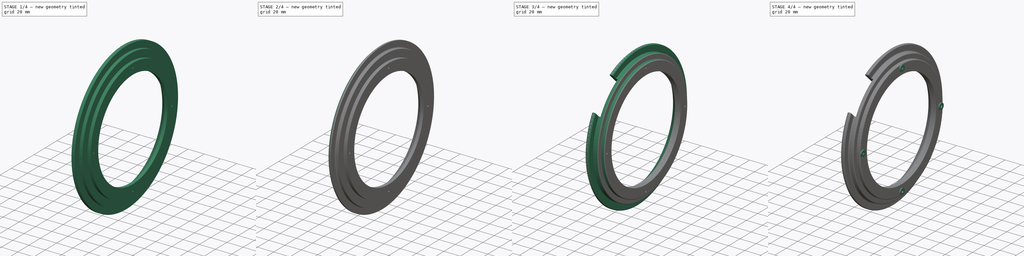
[diagram: build sequence overview — one tinted view per stage of 4, left to right]
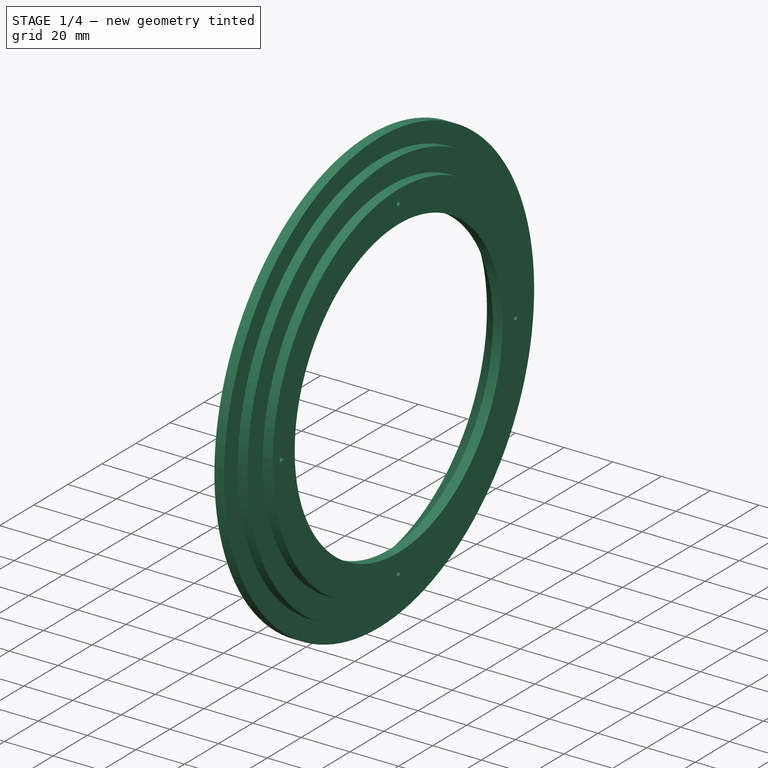
[diagram: stage 1 of 4 — iso view after this stage's code; geometry added in this stage tinted green]
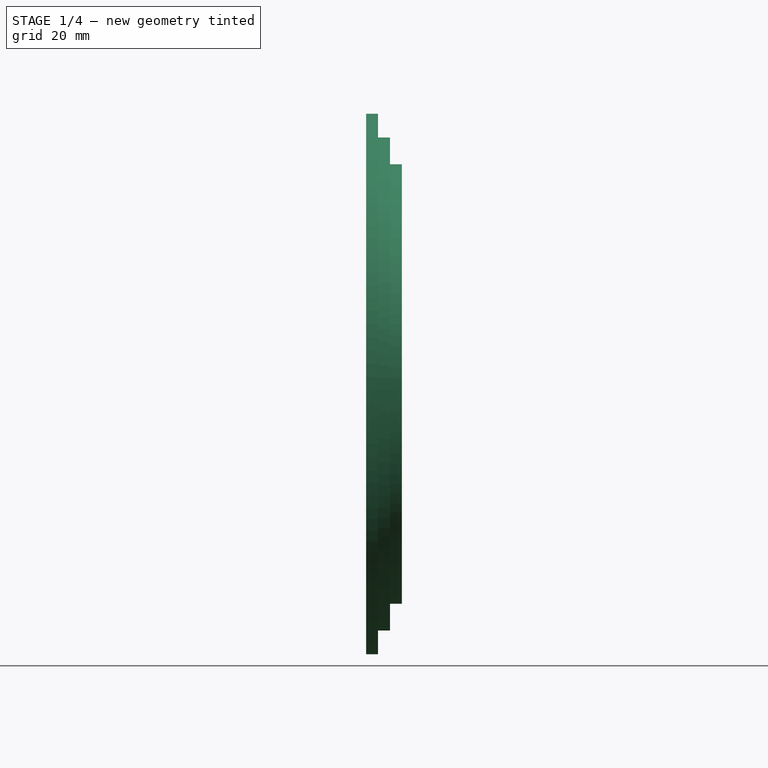
[diagram: stage 1 of 4 — front view after this stage's code; geometry added in this stage tinted green]
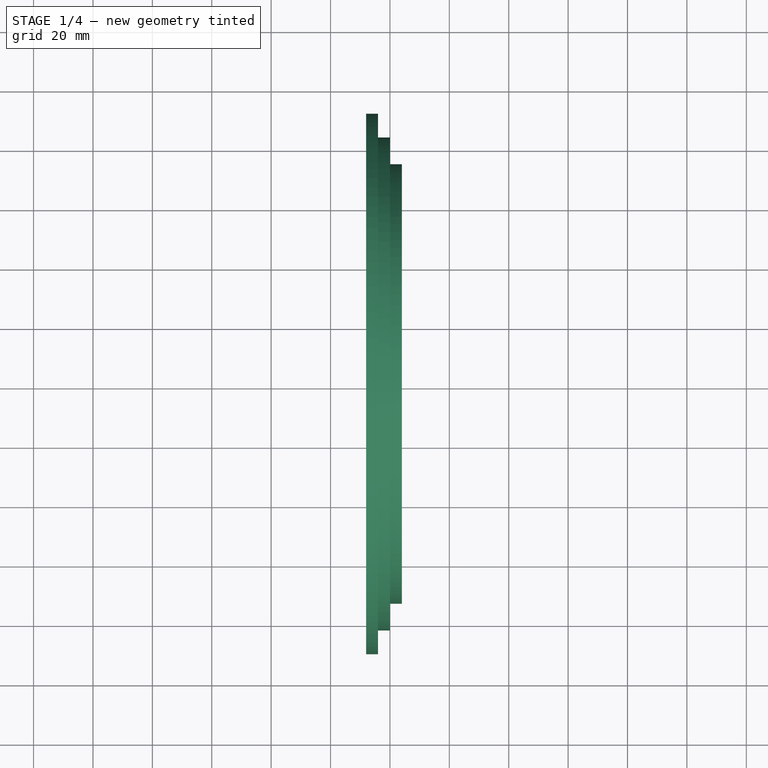
[diagram: stage 1 of 4 — top view after this stage's code; geometry added in this stage tinted green]
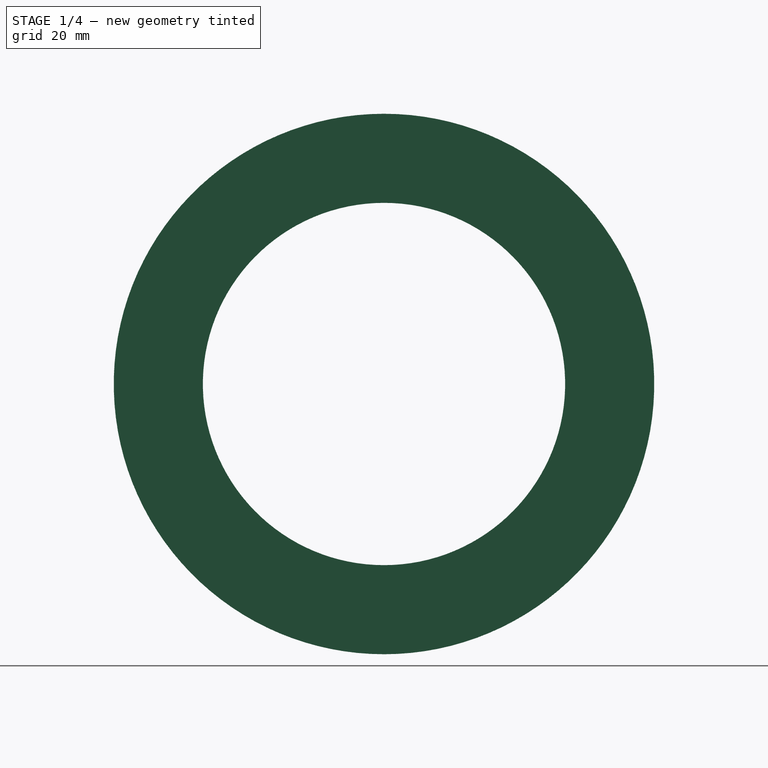
[diagram: stage 1 of 4 — right view after this stage's code; geometry added in this stage tinted green]
FCSTD DOCUMENT  (FreeCAD 0.19R)
Label: ShimanoTripleGuard
License: All rights reserved
LicenseURL: http://en.wikipedia.org/wiki/All_rights_reserved
objects: Sketcher::SketchObject×7, PartDesign::Fillet×6, PartDesign::Pocket×3, PartDesign::Chamfer×2, PartDesign::Revolution×1, PartDesign::PolarPattern×1, PartDesign::Pad×1, PartDesign::Body×1
note: 35 computed .brp shape members not serialized (recipe doc carries the construction recipe); baked Part::Feature solids carry a one-line shape summary decoded from their .brp

FEATURE [Sketcher::SketchObject] Sketch
  FullyConstrained = true
  MapMode = 5
  Placement = pos=(0,0,0) rot=(1,0,0;1.5708rad)
  Support = -> [XZ_Plane]
  sketch-geometry (8):
    g0: LineSegment StartX=-8 StartY=61 StartZ=0 EndX=4 EndY=61 EndZ=0
    g1: LineSegment StartX=4 StartY=61 StartZ=0 EndX=4 EndY=74 EndZ=0
    g2: LineSegment StartX=4 StartY=74 StartZ=0 EndX=0 EndY=74 EndZ=0
    g3: LineSegment StartX=0 StartY=74 StartZ=0 EndX=0 EndY=83 EndZ=0
    g4: LineSegment StartX=0 StartY=83 StartZ=0 EndX=-4 EndY=83 EndZ=0
    g5: LineSegment StartX=-4 StartY=83 StartZ=0 EndX=-4 EndY=91 EndZ=0
    g6: LineSegment StartX=-4 StartY=91 StartZ=0 EndX=-8 EndY=91 EndZ=0
    g7: LineSegment StartX=-8 StartY=91 StartZ=0 EndX=-8 EndY=61 EndZ=0
  constraints (24):
    c: Horizontal(g0)
    c: Coincident(g0,g1)
    c: Coincident(g1,g2)
    c: PointOnObject(g2,g-2)
    c: Coincident(g2,g3)
    c: PointOnObject(g3,g-2)
    c: Coincident(g3,g4)
    c: Coincident(g4,g5)
    c: Coincident(g5,g6)
    c: Horizontal(g6)
    c: Coincident(g6,g7)
    c: Vertical(g7)
    c: Coincident(g0,g7)
    c: Distance(g6) = 4
    c: Horizontal(g4)
    c: Distance(g4) = 4
    c: Distance(g2) = 4
    c: Vertical(g1)
    c: Horizontal(g2)
    c: DistanceY(g0) = 61
    c: DistanceY(g6) = 91
    c: Distance(g3) = 9
    c: Distance(g1) = 13
    c: Vertical(g5)
FEATURE [PartDesign::Revolution] Revolution
  Angle = 360
  Axis = (1,0,0)
  Base = (0,0,0)
  Placement = pos=(0,0,0) rot=(1,0,0;1.5708rad)
  Profile = -> Sketch
  ReferenceAxis = -> Sketch [H_Axis]
FEATURE [Sketcher::SketchObject] Sketch001
  FullyConstrained = true
  MapMode = 5
  Placement = pos=(4,0,0) rot=(0.707107,0,0.707107;3.14159rad)
  Support = -> [Revolution]
  sketch-geometry (1):
    g0: Circle CenterX=68.8 CenterY=0 CenterZ=0 NormalX=0 NormalY=0 NormalZ=1 AngleXU=0 Radius=1
  constraints (3):
    c: PointOnObject(g0,g-1)
    c: Radius(g0) = 1
    c: DistanceX(g0) = 68.8
FEATURE [PartDesign::Pocket] Pocket
  BaseFeature = -> Revolution
  Length = 10
  Length2 = 100
  Placement = pos=(0,0,0) rot=(1,0,0;1.5708rad)
  Profile = -> Sketch001
  Type = 0
FEATURE [PartDesign::PolarPattern] PolarPattern
  Angle = 360
  Axis = -> Sketch001 [N_Axis]
  BaseFeature = -> Pocket
  Occurrences = 4
  Originals = -> [Pocket]
  Placement = pos=(0,0,0) rot=(1,0,0;1.5708rad)
FEATURE [PartDesign::Chamfer] Chamfer
  Angle = 45
  Base = -> PolarPattern [Edge1]
  BaseFeature = -> PolarPattern
  ChamferType = 0
  FlipDirection = false
  Placement = pos=(0,0,0) rot=(1,0,0;1.5708rad)
  Size = 8
  Size2 = 1
  SupportTransform = false
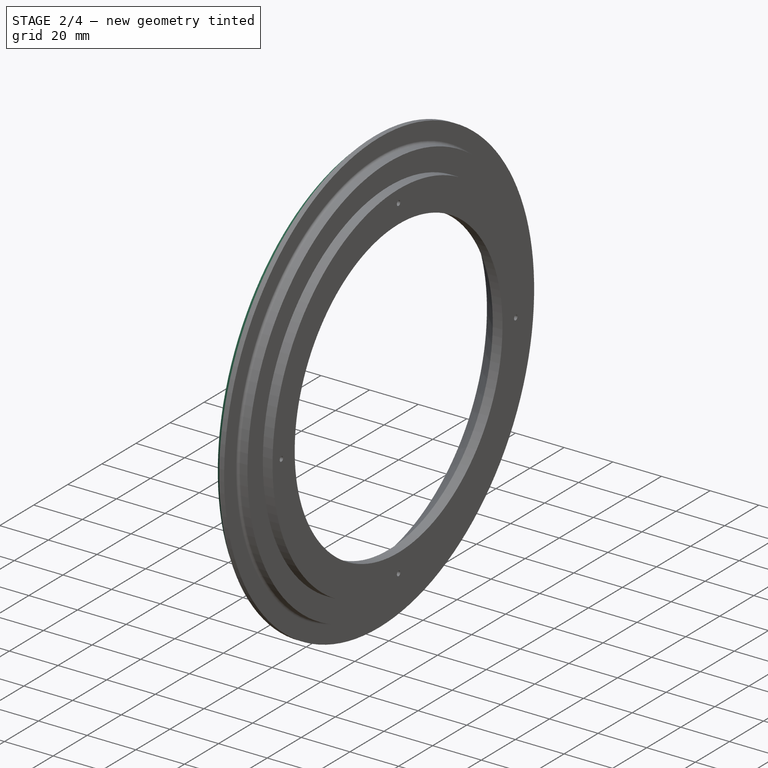
[diagram: stage 2 of 4 — iso view after this stage's code; geometry added in this stage tinted green]
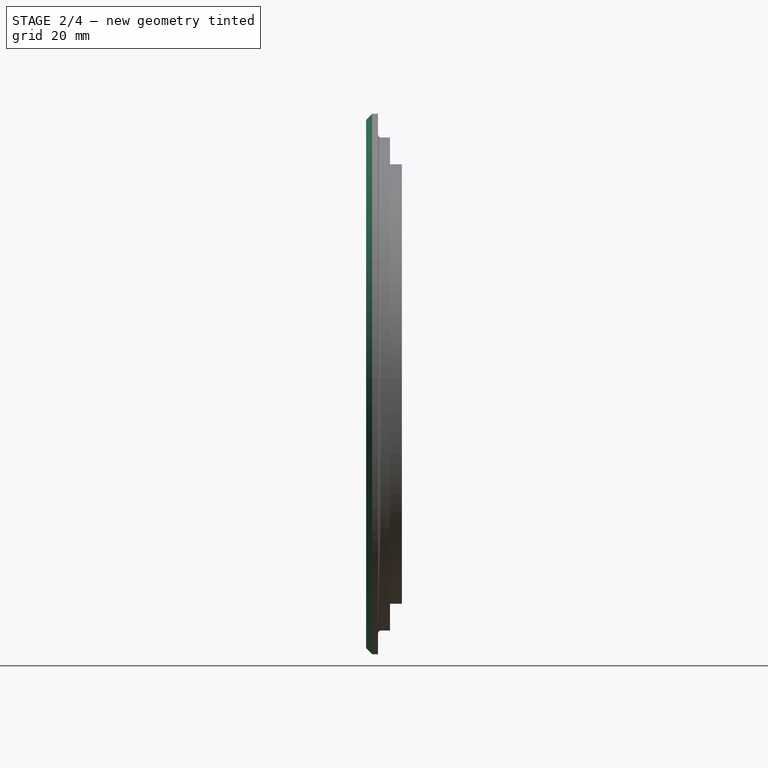
[diagram: stage 2 of 4 — front view after this stage's code; geometry added in this stage tinted green]
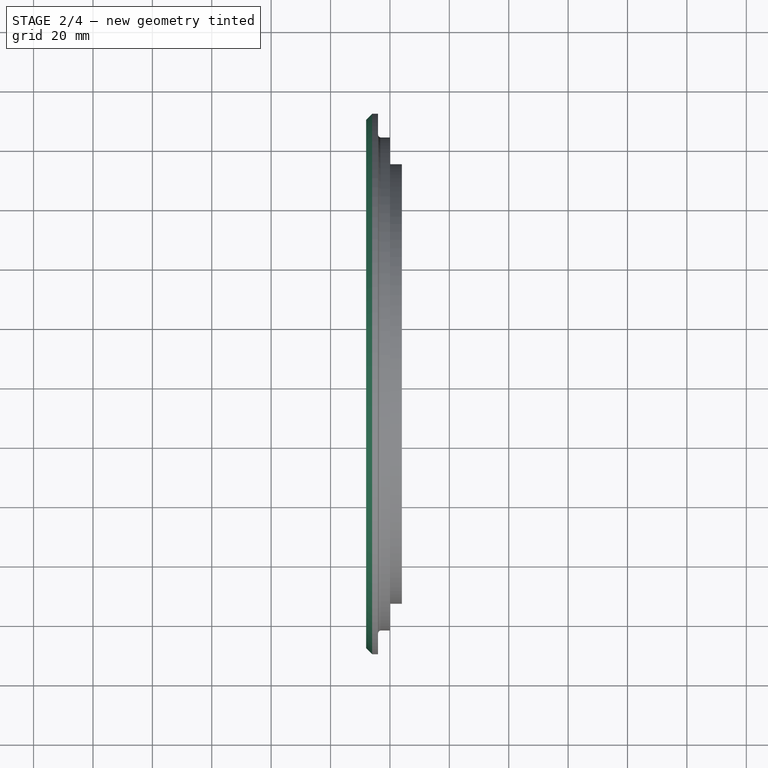
[diagram: stage 2 of 4 — top view after this stage's code; geometry added in this stage tinted green]
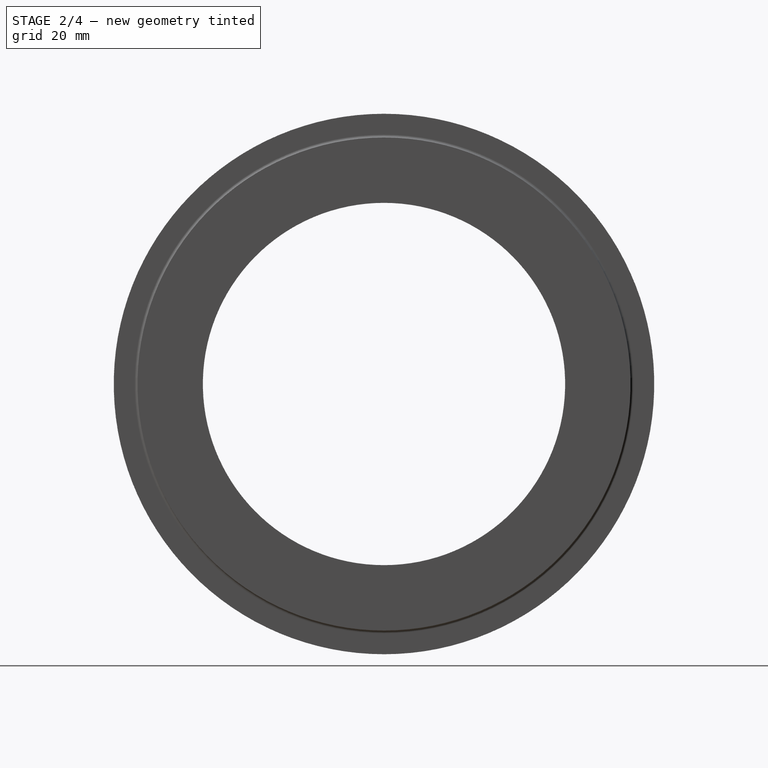
[diagram: stage 2 of 4 — right view after this stage's code; geometry added in this stage tinted green]
FEATURE [PartDesign::Chamfer] Chamfer001
  Angle = 45
  Base = -> Chamfer [Edge11]
  BaseFeature = -> Chamfer
  ChamferType = 0
  FlipDirection = false
  Placement = pos=(0,0,0) rot=(1,0,0;1.5708rad)
  Size = 2
  Size2 = 1
  SupportTransform = false
FEATURE [PartDesign::Fillet] Fillet
  Base = -> Chamfer001 [Edge18]
  BaseFeature = -> Chamfer001
  Placement = pos=(0,0,0) rot=(1,0,0;1.5708rad)
  Radius = 1
  SupportTransform = false
FEATURE [PartDesign::Fillet] Fillet001
  Base = -> Fillet [Edge11]
  BaseFeature = -> Fillet
  Placement = pos=(0,0,0) rot=(1,0,0;1.5708rad)
  Radius = 1
  SupportTransform = false
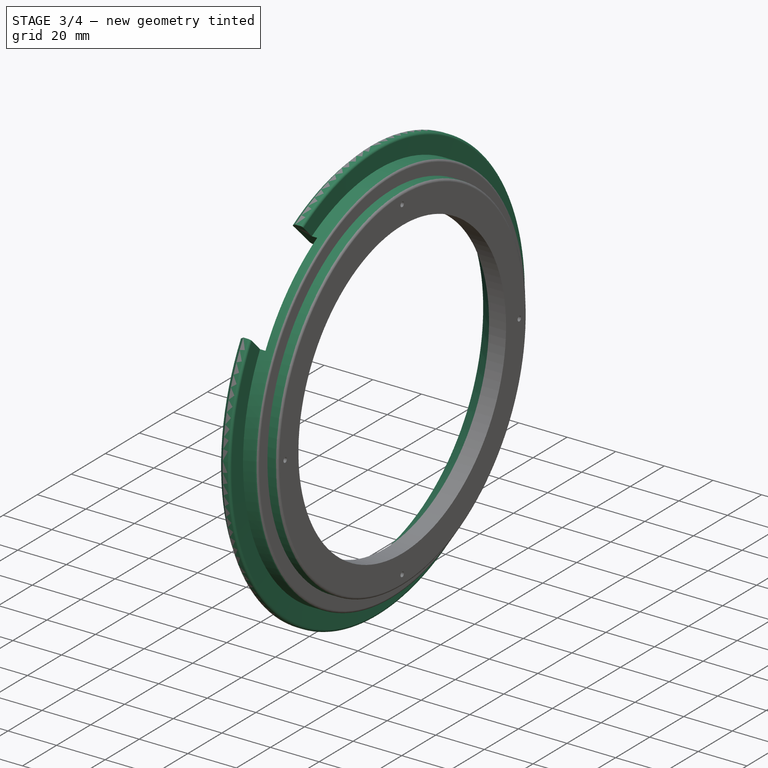
[diagram: stage 3 of 4 — iso view after this stage's code; geometry added in this stage tinted green]
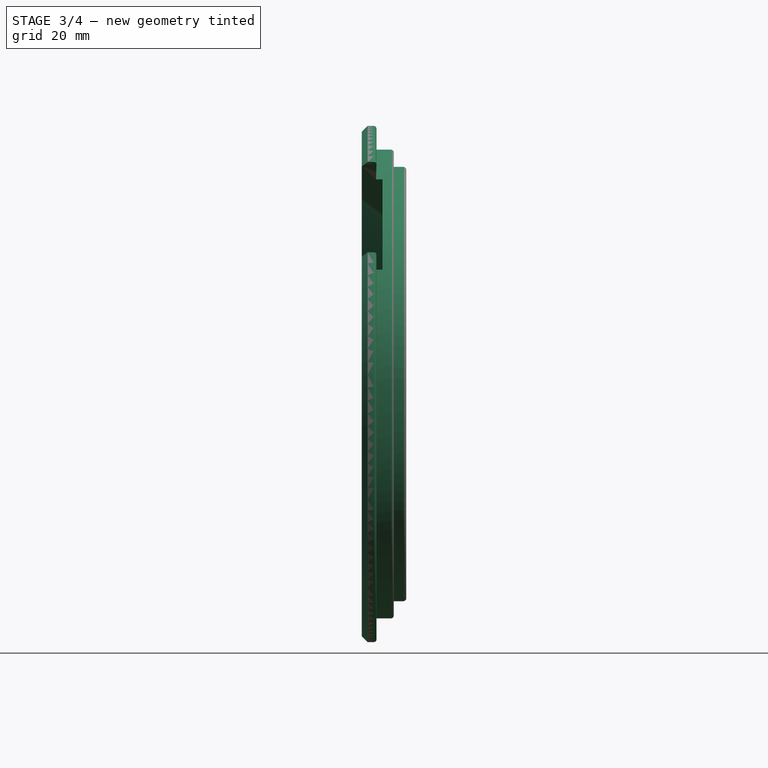
[diagram: stage 3 of 4 — front view after this stage's code; geometry added in this stage tinted green]
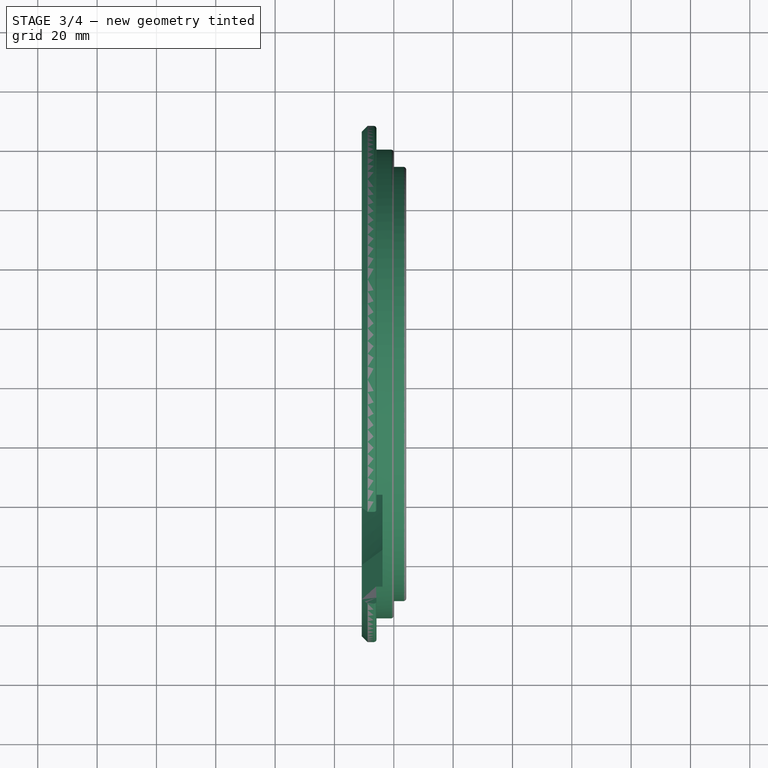
[diagram: stage 3 of 4 — top view after this stage's code; geometry added in this stage tinted green]
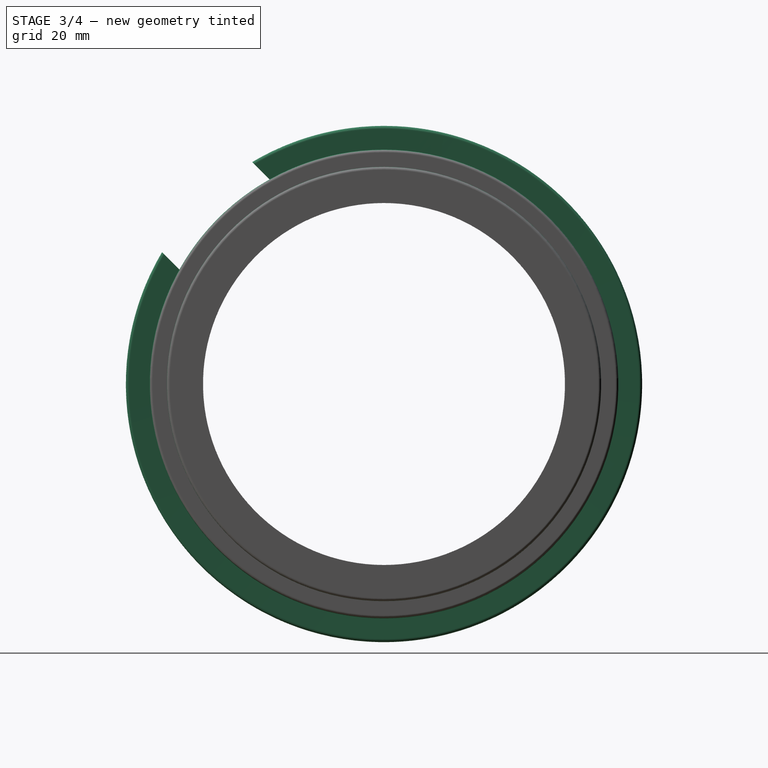
[diagram: stage 3 of 4 — right view after this stage's code; geometry added in this stage tinted green]
FEATURE [PartDesign::Fillet] Fillet002
  Base = -> Fillet001 [Edge28]
  BaseFeature = -> Fillet001
  Placement = pos=(0,0,0) rot=(1,0,0;1.5708rad)
  Radius = 1
  SupportTransform = false
FEATURE [Sketcher::SketchObject] Sketch002
  FullyConstrained = true
  MapMode = 5
  Placement = pos=(-10.8,0,0) rot=(0.707107,0,-0.707107;3.14159rad)
  Support = -> [Fillet002]
  sketch-geometry (4):
    g0: LineSegment StartX=-66.065 StartY=96.4706 StartZ=0 EndX=15.2028 EndY=15.2028 EndZ=0
    g1: LineSegment StartX=15.2028 StartY=15.2028 StartZ=0 EndX=-15.2028 EndY=-15.2028 EndZ=0
    g2: LineSegment StartX=-15.2028 StartY=-15.2028 StartZ=0 EndX=-96.4706 EndY=66.065 EndZ=0
    g3: LineSegment StartX=-96.4706 StartY=66.065 StartZ=0 EndX=-66.065 EndY=96.4706 EndZ=0
  constraints (11):
    c: Coincident(g0,g1)
    c: Coincident(g1,g2)
    c: Coincident(g2,g3)
    c: Coincident(g3,g0)
    c: Symmetric(g1,g0,g-1)
    c: Distance(g3) = 43
    c: Distance(g0) = 114.93
    c: Parallel(g3,g1)
    c: Perpendicular(g0,g3)
    c: Parallel(g0,g2)
    c: Angle(g0) = -0.785398
FEATURE [PartDesign::Pocket] Pocket001
  BaseFeature = -> Fillet002
  Length = 7
  Length2 = 100
  Placement = pos=(0,0,0) rot=(1,0,0;1.5708rad)
  Profile = -> Sketch002
  Type = 0
FEATURE [PartDesign::Fillet] Fillet003
  Base = -> Pocket001 [Edge13,Edge20]
  BaseFeature = -> Pocket001
  Placement = pos=(0,0,0) rot=(1,0,0;1.5708rad)
  Radius = 2
  SupportTransform = false
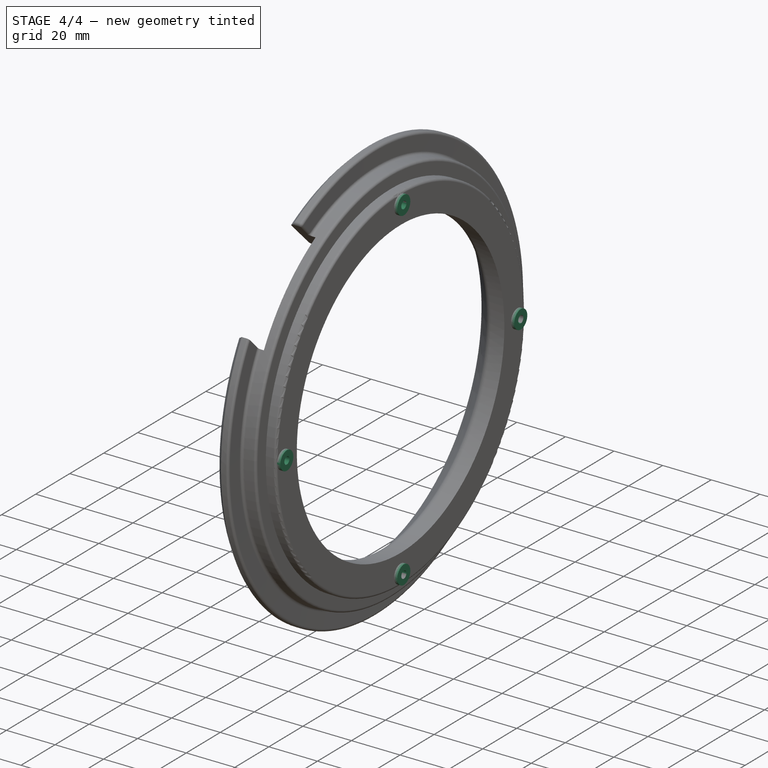
[diagram: stage 4 of 4 — iso view after this stage's code; geometry added in this stage tinted green]
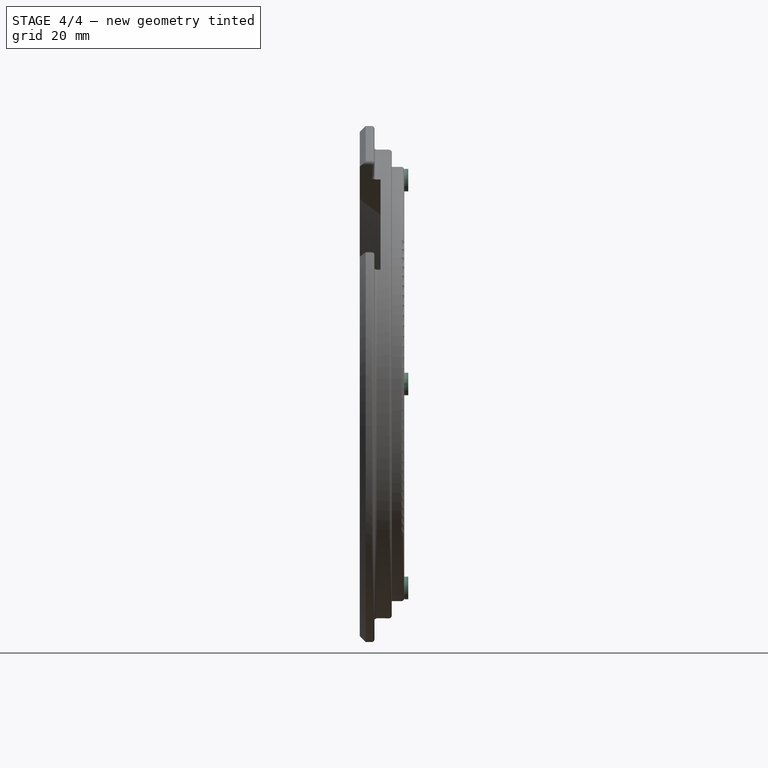
[diagram: stage 4 of 4 — front view after this stage's code; geometry added in this stage tinted green]
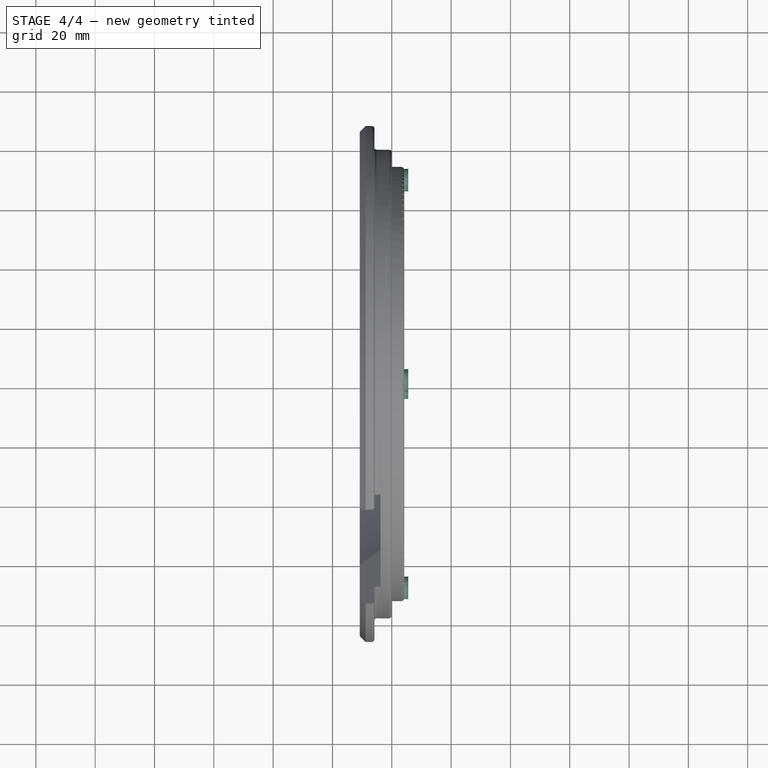
[diagram: stage 4 of 4 — top view after this stage's code; geometry added in this stage tinted green]
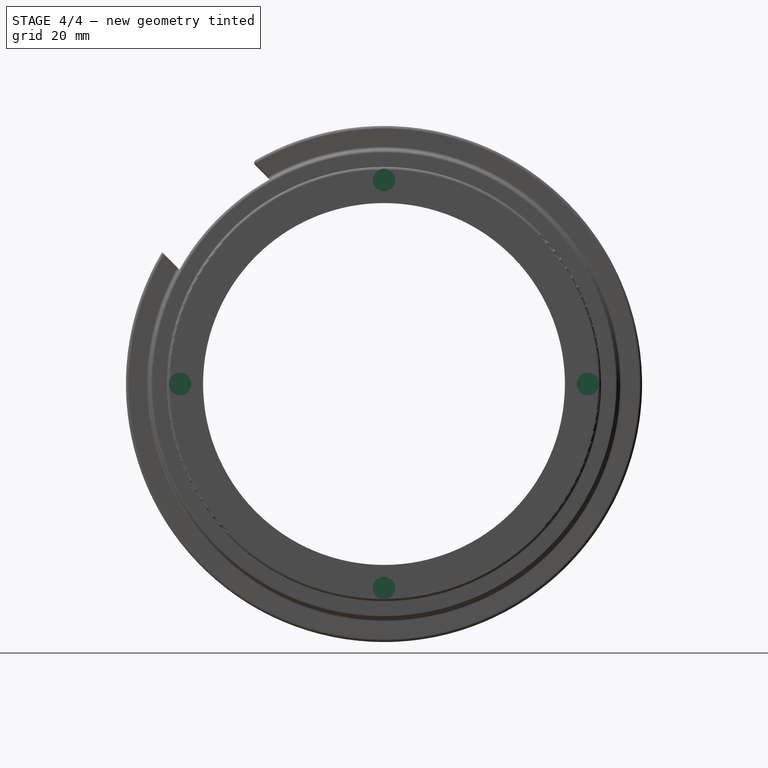
[diagram: stage 4 of 4 — right view after this stage's code; geometry added in this stage tinted green]
FEATURE [PartDesign::Fillet] Fillet004
  Base = -> Fillet003 [Edge27,Edge5]
  BaseFeature = -> Fillet003
  Placement = pos=(0,0,0) rot=(1,0,0;1.5708rad)
  Radius = 1
  SupportTransform = false
FEATURE [PartDesign::Fillet] Fillet005
  Base = -> Fillet004 [Edge43]
  BaseFeature = -> Fillet004
  Placement = pos=(0,0,0) rot=(1,0,0;1.5708rad)
  Radius = 3
  SupportTransform = false
FEATURE [Sketcher::SketchObject] Sketch003
  FullyConstrained = true
  MapMode = 5
  Placement = pos=(4.2,0,0) rot=(0.707107,0,0.707107;3.14159rad)
  Support = -> [Fillet005]
  sketch-geometry (9):
    g0: LineSegment StartX=0 StartY=0 StartZ=0 EndX=106.066 EndY=106.066 EndZ=0
    g1: LineSegment StartX=1.42e-14 StartY=68.75 StartZ=0 EndX=68.75 EndY=0 EndZ=0
    g2: LineSegment StartX=68.75 StartY=0 StartZ=0 EndX=-1.42e-14 EndY=-68.75 EndZ=0
    g3: LineSegment StartX=-68.75 StartY=7.1e-15 StartZ=0 EndX=-1.42e-14 EndY=-68.75 EndZ=0
    g4: LineSegment StartX=-68.75 StartY=7.1e-15 StartZ=0 EndX=1.42e-14 EndY=68.75 EndZ=0
    g5: Circle CenterX=-68.75 CenterY=7.1e-15 CenterZ=0 NormalX=0 NormalY=0 NormalZ=1 AngleXU=0 Radius=3.8
    g6: Circle CenterX=-1.42e-14 CenterY=-68.75 CenterZ=0 NormalX=0 NormalY=0 NormalZ=1 AngleXU=0 Radius=3.8
    g7: Circle CenterX=1.42e-14 CenterY=68.75 CenterZ=0 NormalX=0 NormalY=0 NormalZ=1 AngleXU=0 Radius=3.8
    g8: Circle CenterX=68.75 CenterY=0 CenterZ=0 NormalX=0 NormalY=0 NormalZ=1 AngleXU=0 Radius=3.8
  constraints (22):
    c: Coincident(g0,g-1)
    c: Distance(g0) = 150
    c: Angle(g0) = 0.785398
    c: Coincident(g2,g1)
    c: Coincident(g3,g2)
    c: Coincident(g4,g3)
    c: Coincident(g4,g1)
    c: Equal(g3,g1)
    c: Symmetric(g1,g3,g-1)
    c: Perpendicular(g1,g4)
    c: Equal(g4,g2)
    c: Perpendicular(g1,g0)
    c: Radius(g8) = 3.8
    c: Equal(g8,g7)
    c: Equal(g8,g6)
    c: Equal(g8,g5)
    c: Coincident(g8,g1)
    c: Coincident(g7,g1)
    c: Coincident(g5,g3)
    c: Coincident(g6,g2)
    c: Equal(g2,g1)
    c: Distance(g7,g6) = 137.5
FEATURE [PartDesign::Pad] Pad
  BaseFeature = -> Fillet005
  Direction = (1,1,1)
  Length = 1.35
  Length2 = 100
  Placement = pos=(0,0,0) rot=(1,0,0;1.5708rad)
  Profile = -> Sketch003
  Type = 0
FEATURE [Sketcher::SketchObject] Sketch004
  FullyConstrained = true
  MapMode = 5
  Placement = pos=(5.55,0,-9e-16) rot=(0.707107,0,0.707107;3.14159rad)
  Support = -> [Pad]
  sketch-geometry (4):
    g0: Circle CenterX=-68.75 CenterY=0 CenterZ=0 NormalX=0 NormalY=0 NormalZ=1 AngleXU=0 Radius=1.5
    g1: Circle CenterX=0 CenterY=68.75 CenterZ=0 NormalX=0 NormalY=0 NormalZ=1 AngleXU=0 Radius=1.5
    g2: Circle CenterX=0 CenterY=-68.75 CenterZ=0 NormalX=0 NormalY=0 NormalZ=1 AngleXU=0 Radius=1.5
    g3: Circle CenterX=68.75 CenterY=0 CenterZ=0 NormalX=0 NormalY=0 NormalZ=1 AngleXU=0 Radius=1.5
  constraints (10):
    c: Equal(g3,g2)
    c: Equal(g2,g1)
    c: Equal(g1,g0)
    c: Radius(g1) = 1.5
    c: PointOnObject(g0,g-1)
    c: PointOnObject(g2,g-2)
    c: Symmetric(g2,g1,g-1)
    c: Distance(g1,g2) = 137.5
    c: Symmetric(g3,g0,g-1)
    c: Distance(g3,g0) = 137.5
FEATURE [PartDesign::Pocket] Pocket002
  BaseFeature = -> Pad
  Length = 12
  Length2 = 100
  Placement = pos=(0,0,0) rot=(1,0,0;1.5708rad)
  Profile = -> Sketch004
  Type = 0
FEATURE [Sketcher::SketchObject] Sketch005
  FullyConstrained = false
  MapMode = 5
  Placement = pos=(4.2,0,0) rot=(0.707107,0,0.707107;3.14159rad)
  Support = -> [Pocket002]
  sketch-geometry (5):
    g0: LineSegment StartX=0 StartY=0 StartZ=0 EndX=99.6776 EndY=99.6776 EndZ=0
    g1: LineSegment StartX=30.1923 StartY=59.8907 StartZ=0 EndX=59.7679 EndY=30.0694 EndZ=0
    g2: LineSegment StartX=59.7679 StartY=30.0694 StartZ=0 EndX=55.4536 EndY=25.7551 EndZ=0
    g3: LineSegment StartX=55.4536 StartY=25.7551 StartZ=0 EndX=25.7551 EndY=55.4536 EndZ=0
    g4: LineSegment StartX=25.7551 StartY=55.4536 StartZ=0 EndX=30.1923 EndY=59.8907 EndZ=0
  constraints (10):
    c: Coincident(g0,g-1)
    c: Angle(g0) = 0.785398
    c: Coincident(g1,g2)
    c: Coincident(g2,g3)
    c: Coincident(g3,g4)
    c: Coincident(g4,g1)
    c: Symmetric(g2,g3,g0)
    c: Perpendicular(g3,g2)
    c: Perpendicular(g4,g3)
    c: Distance(g3) = 42
FEATURE [Sketcher::SketchObject] Sketch006
  FullyConstrained = false
  MapMode = 5
  Placement = pos=(-3.8,0,-9e-16) rot=(0.707107,0,-0.707107;3.14159rad)
  sketch-geometry (5):
    g0: LineSegment StartX=0 StartY=0 StartZ=0 EndX=-121.444 EndY=121.444 EndZ=0
    g1: LineSegment StartX=-39.0065 StartY=68.705 StartZ=0 EndX=-68.705 EndY=39.0065 EndZ=0
    g2: LineSegment StartX=-68.705 StartY=39.0065 StartZ=0 EndX=-115.71 EndY=86.0111 EndZ=0
    g3: LineSegment StartX=-115.71 StartY=86.0111 StartZ=0 EndX=-86.0111 EndY=115.71 EndZ=0
    g4: LineSegment StartX=-86.0111 StartY=115.71 StartZ=0 EndX=-39.0065 EndY=68.705 EndZ=0
  constraints (11):
    c: Coincident(g0,g-1)
    c: Coincident(g1,g2)
    c: Coincident(g2,g3)
    c: Coincident(g3,g4)
    c: Coincident(g4,g1)
    c: Symmetric(g1,g1,g0)
    c: Distance(g1) = 42
    c: Angle(g0) = 2.35619
    c: Perpendicular(g4,g1)
    c: Perpendicular(g2,g1)
    c: Perpendicular(g2,g3)
FEATURE [PartDesign::Body] Body
  Group = -> [Sketch,Revolution,Sketch001,Pocket,PolarPattern,Chamfer,Chamfer001,Fillet,Fillet001,Fillet002,Sketch002,Pocket001,Fillet003,Fillet004,Fillet005,Sketch003,Pad,Sketch004,Pocket002,Sketch005,Sketch006]
  Origin = -> Origin
  Tip = -> Pocket002
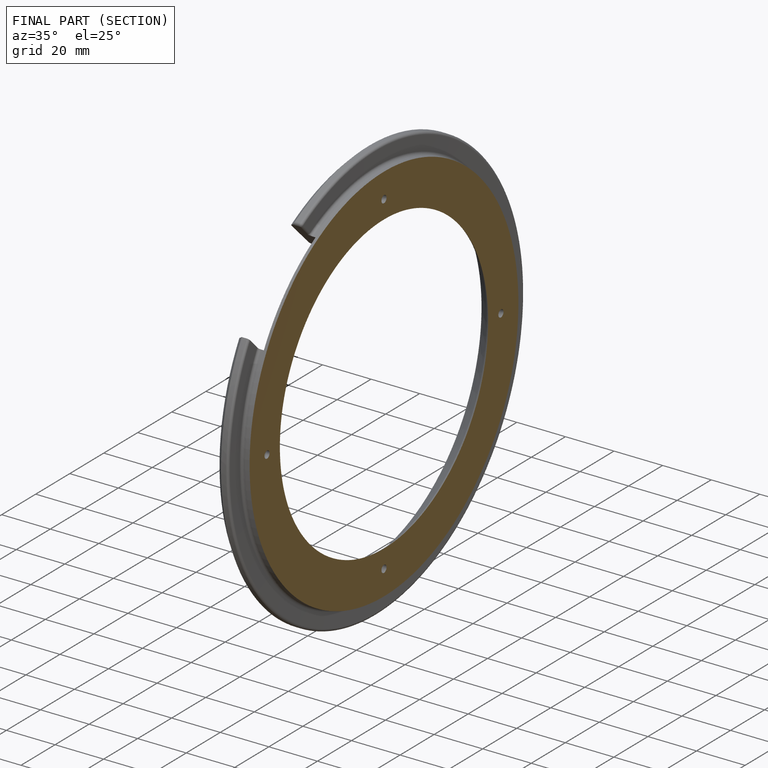
[diagram: finished part — half-section view (interior)]
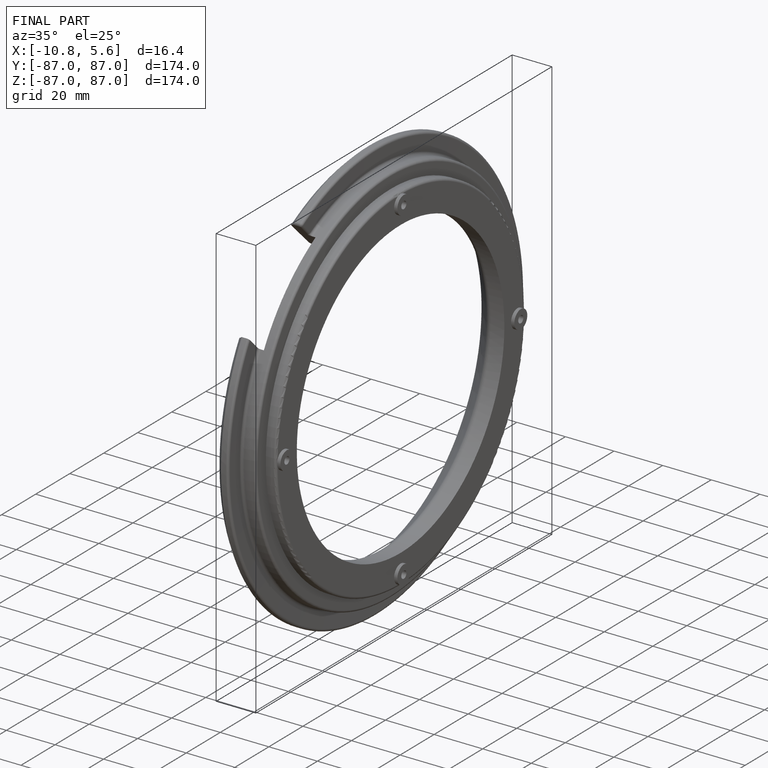
[diagram: finished part — iso view with bounding-box wireframe]
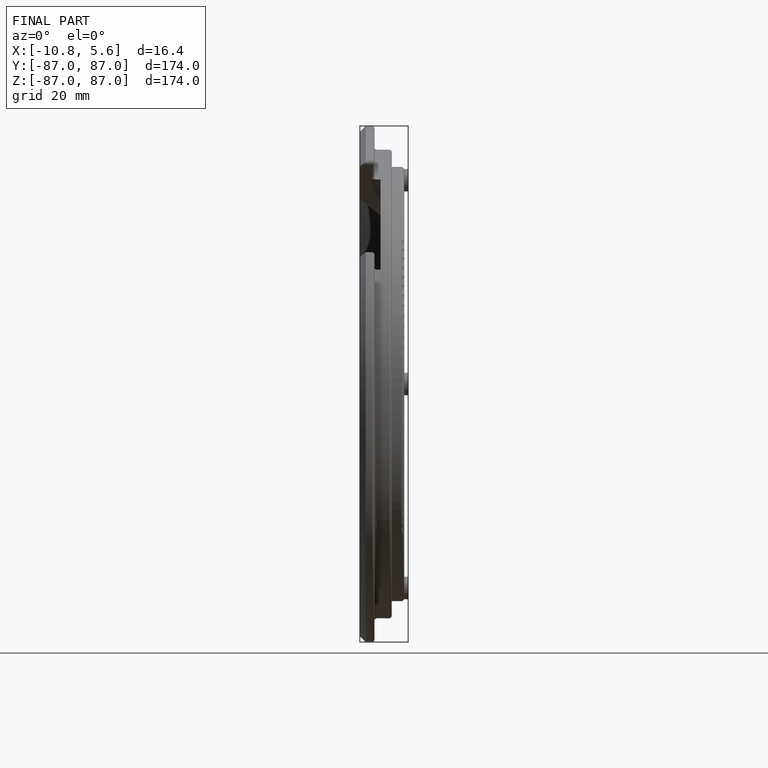
[diagram: finished part — front view with bounding-box wireframe]
